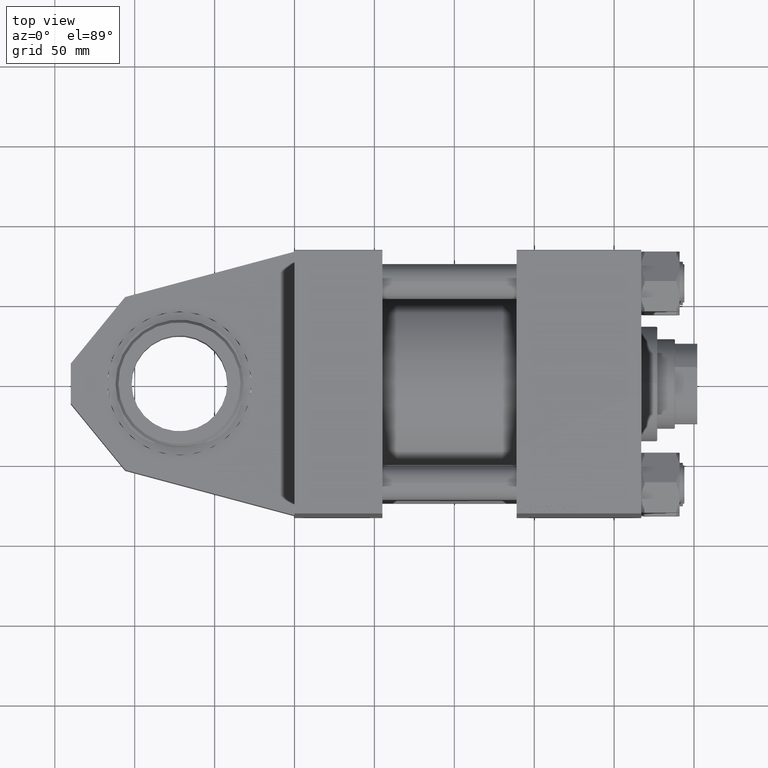
[diagram: clean part render]
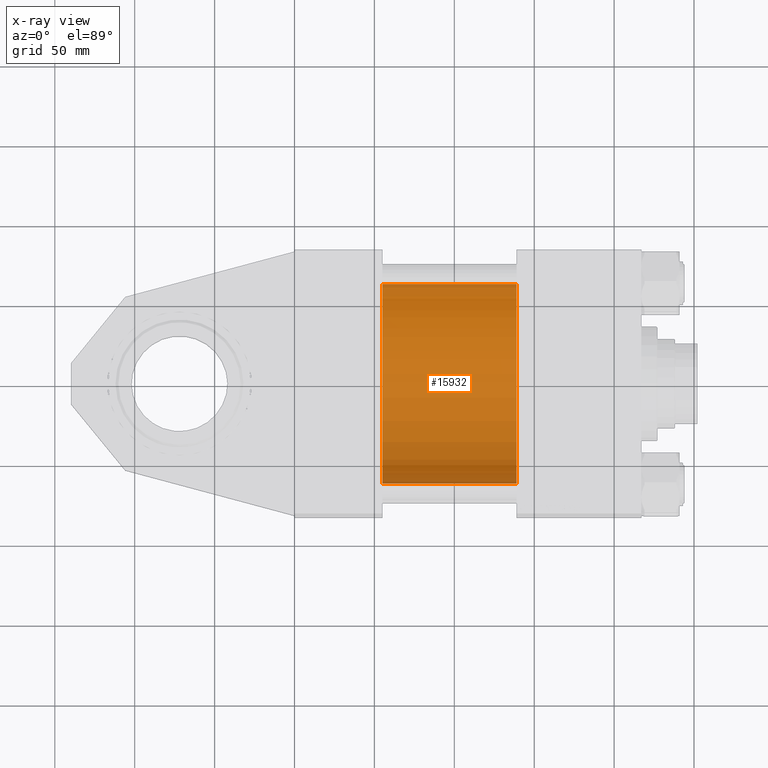
[diagram: x-ray — body ghosted, one internal face saturated and labeled with its STEP entity id]
A machine part, top view, then the same camera in x-ray: the body is ghosted and one INTERNAL B-rep face — a face not visible from any outside direction — is saturated and labeled: STEP entity #15932.
In plain terms, the highlighted cylindrical surface (partial cylindrical patch) has radius 62.5 mm, axis along (-1, 0, -0).
Its self-contained STEP definition (entity closure, byte-faithful):
#422 = EDGE_CURVE ( 'NONE', #39559, #21845, #20882, .T. ) ;
#785 = AXIS2_PLACEMENT_3D ( 'NONE', #14373, #21813, #2059 ) ;
#1512 = DIRECTION ( 'NONE',  ( 1.000000000000000000, 0.000000000000000000, 0.000000000000000000 ) ) ;
#2059 = DIRECTION ( 'NONE',  ( 0.000000000000000000, 0.000000000000000000, 1.000000000000000000 ) ) ;
#3348 = CIRCLE ( 'NONE', #5800, 62.50000000000000000 ) ;
#4095 = CARTESIAN_POINT ( 'NONE',  ( 55.00000000000000000, -2.602085213965210642E-15, 0.000000000000000000 ) ) ;
#4301 = VERTEX_POINT ( 'NONE', #42798 ) ;
#4843 = DIRECTION ( 'NONE',  ( 0.000000000000000000, 0.000000000000000000, -1.000000000000000000 ) ) ;
#5144 = EDGE_CURVE ( 'NONE', #21845, #4301, #14737, .T. ) ;
#5800 = AXIS2_PLACEMENT_3D ( 'NONE', #4095, #11790, #4843 ) ;
#6960 = AXIS2_PLACEMENT_3D ( 'NONE', #20515, #1512, #43642 ) ;
#6995 = VECTOR ( 'NONE', #30385, 1000.000000000000000 ) ;
#7924 = CARTESIAN_POINT ( 'NONE',  ( 139.0000000000000000, 5.051957280705745584E-15, -62.50000000000000000 ) ) ;
#11790 = DIRECTION ( 'NONE',  ( 1.000000000000000000, 0.000000000000000000, 0.000000000000000000 ) ) ;
#14222 = CARTESIAN_POINT ( 'NONE',  ( 139.0000000000000000, -2.602085213965210642E-15, 62.50000000000000000 ) ) ;
#14373 = CARTESIAN_POINT ( 'NONE',  ( 139.0000000000000000, -2.602085213965210642E-15, 0.000000000000000000 ) ) ;
#14737 = LINE ( 'NONE', #33473, #6995 ) ;
#15230 = EDGE_CURVE ( 'NONE', #39559, #24118, #31705, .T. ) ;
#15932 = ADVANCED_FACE ( 'NONE', ( #17968 ), #37985, .F. ) ;
#16867 = ORIENTED_EDGE ( 'NONE', *, *, #5144, .T. ) ;
#17968 = FACE_OUTER_BOUND ( 'NONE', #43309, .T. ) ;
#20515 = CARTESIAN_POINT ( 'NONE',  ( 139.0000000000000000, -2.602085213965210642E-15, 0.000000000000000000 ) ) ;
#20882 = CIRCLE ( 'NONE', #6960, 62.50000000000000000 ) ;
#21813 = DIRECTION ( 'NONE',  ( -1.000000000000000000, -0.000000000000000000, -0.000000000000000000 ) ) ;
#21845 = VERTEX_POINT ( 'NONE', #7924 ) ;
#22983 = DIRECTION ( 'NONE',  ( -1.000000000000000000, -0.000000000000000000, -0.000000000000000000 ) ) ;
#24118 = VERTEX_POINT ( 'NONE', #41862 ) ;
#27812 = VECTOR ( 'NONE', #22983, 1000.000000000000000 ) ;
#30385 = DIRECTION ( 'NONE',  ( -1.000000000000000000, -0.000000000000000000, -0.000000000000000000 ) ) ;
#31705 = LINE ( 'NONE', #31960, #27812 ) ;
#31960 = CARTESIAN_POINT ( 'NONE',  ( 139.0000000000000000, -2.602085213965210642E-15, 62.50000000000000000 ) ) ;
#33473 = CARTESIAN_POINT ( 'NONE',  ( 139.0000000000000000, 5.051957280705745584E-15, -62.50000000000000000 ) ) ;
#37985 = CYLINDRICAL_SURFACE ( 'NONE', #785, 62.50000000000000000 ) ;
#39559 = VERTEX_POINT ( 'NONE', #14222 ) ;
#40603 = ORIENTED_EDGE ( 'NONE', *, *, #15230, .F. ) ;
#41862 = CARTESIAN_POINT ( 'NONE',  ( 55.00000000000000000, -2.602085213965210642E-15, 62.50000000000000000 ) ) ;
#42165 = ORIENTED_EDGE ( 'NONE', *, *, #46842, .F. ) ;
#42798 = CARTESIAN_POINT ( 'NONE',  ( 55.00000000000000000, 5.051957280705745584E-15, -62.50000000000000000 ) ) ;
#43309 = EDGE_LOOP ( 'NONE', ( #44934, #16867, #42165, #40603 ) ) ;
#43642 = DIRECTION ( 'NONE',  ( 0.000000000000000000, 0.000000000000000000, -1.000000000000000000 ) ) ;
#44934 = ORIENTED_EDGE ( 'NONE', *, *, #422, .T. ) ;
#46842 = EDGE_CURVE ( 'NONE', #24118, #4301, #3348, .T. ) ;